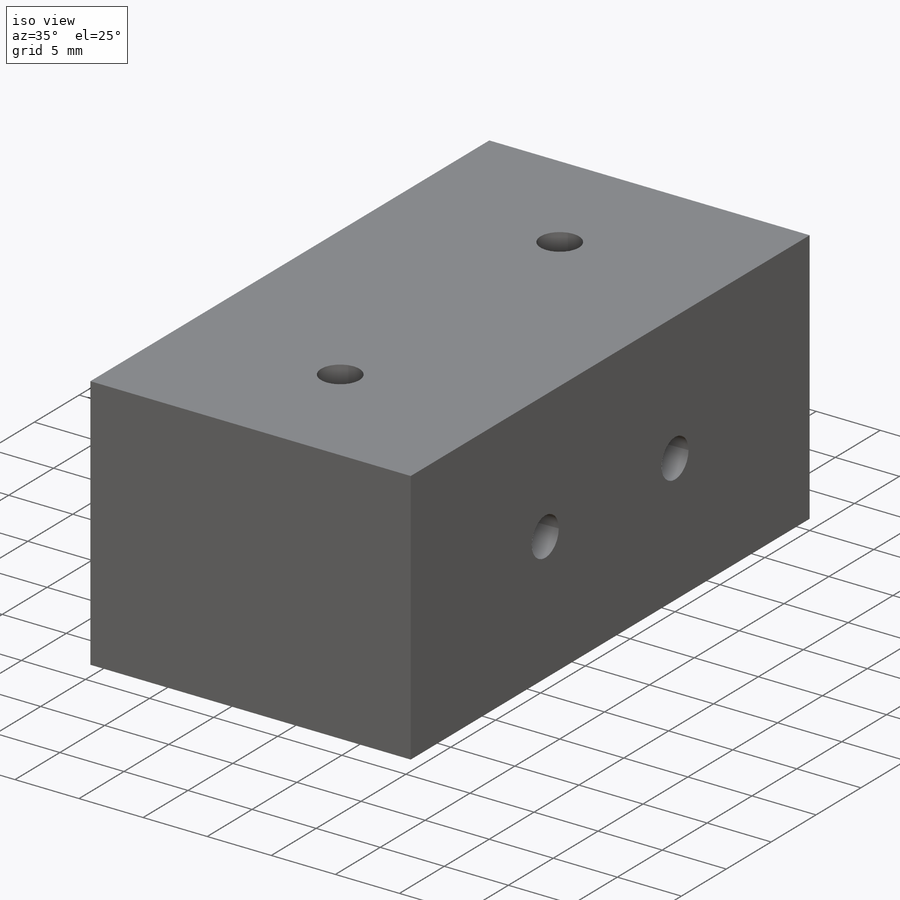
[diagram: iso view]
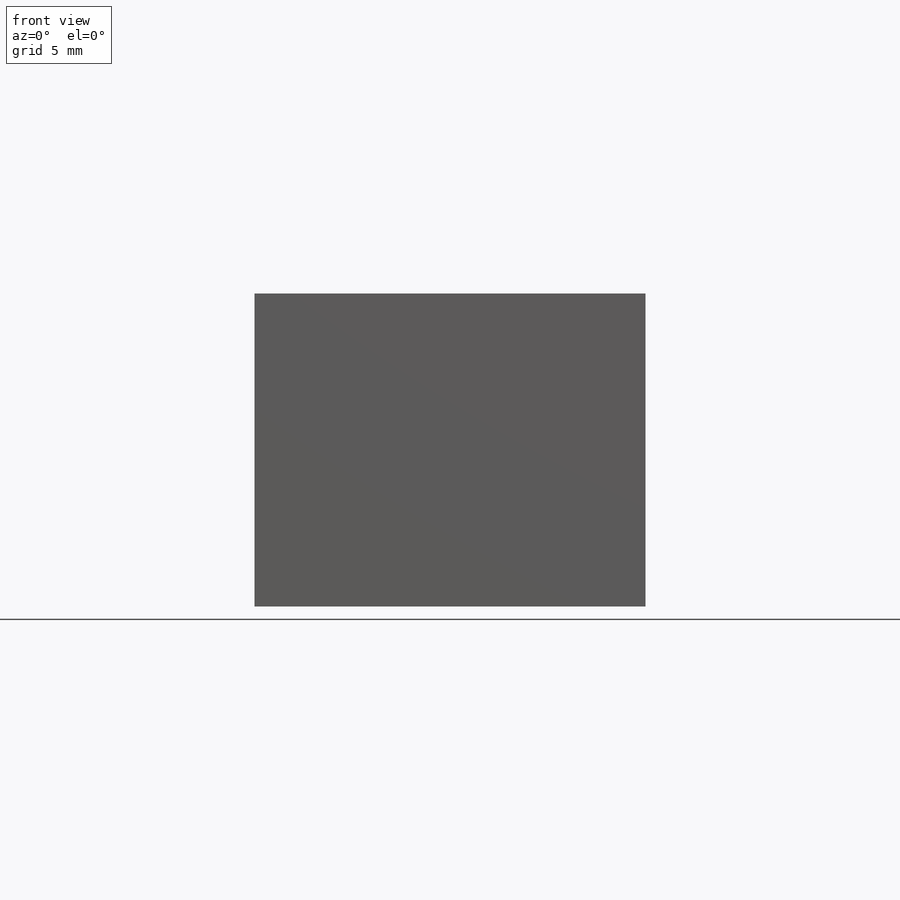
[diagram: front view]
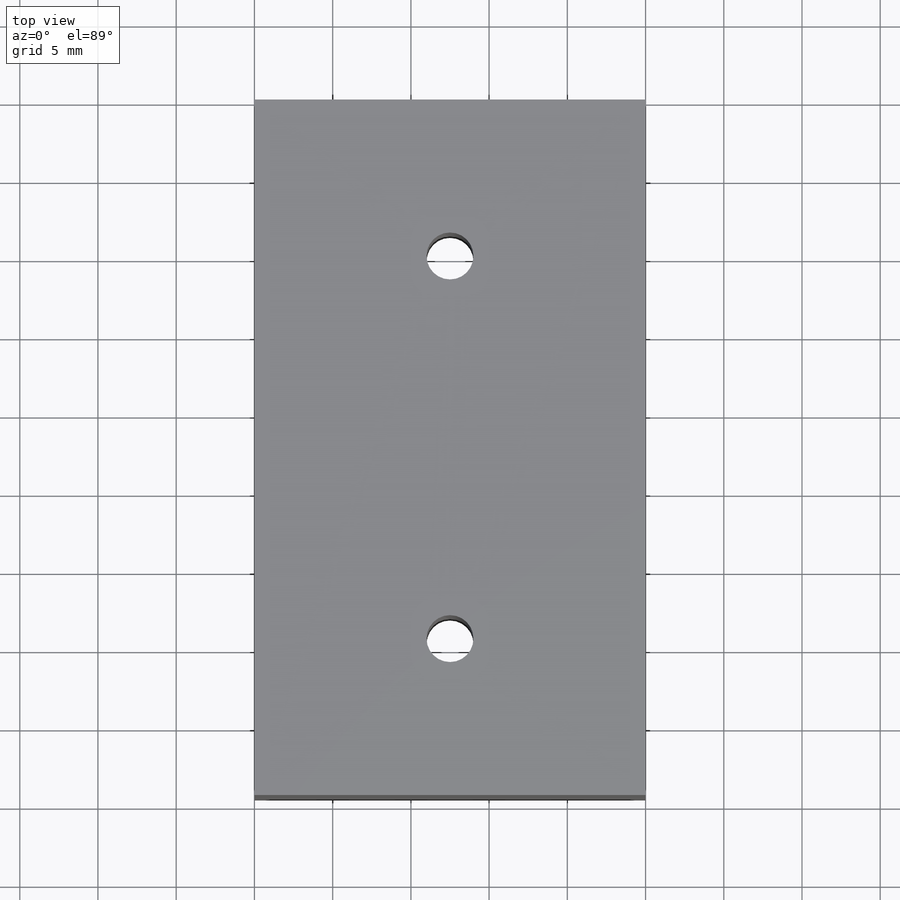
[diagram: top view]
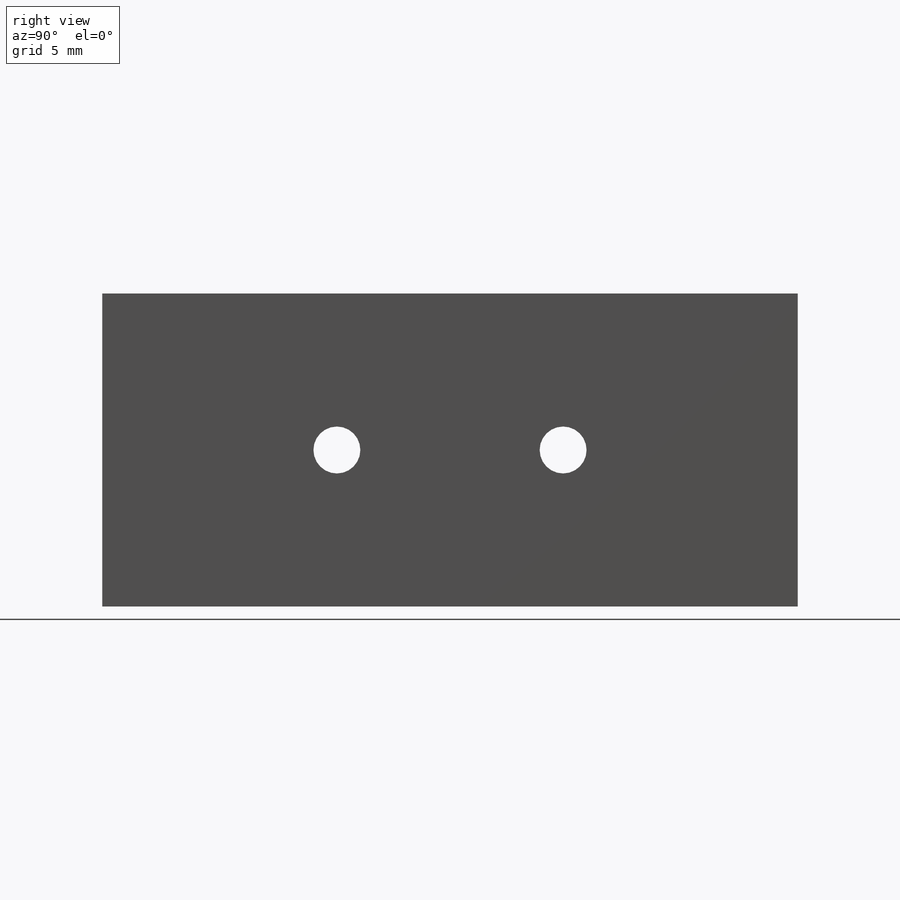
[diagram: right view]
SOLIDWORKS PART (.sldprt)
format: sldprt  version: not decoded by parser v0  size: 155,648 bytes
history: native  units: mm
features: plane x3, sketch x3, cut_extrude x2, material x1, extrude x1 (+10 scaffold rows collapsed)
feature tree (20):
  scaffold x10  (default folders/planes/origin — collapsed)
  material  "Material <sin especificar>"
  plane  "Alzado"
  plane  "Planta"
  plane  "Vista lateral"
  sketch  "Croquis2"  dims[D1=50.0mm D2=30.0mm D3=30.0mm D5=~16.743657mm D4=20.0mm]
  extrude  "Saliente-Extruir2"  Depth=25mm
  sketch  "Croquis3"  dims[c1.D1=~11.868341mm c1.D3=3.0mm c1.D4=3.0mm c2.D1=10.0mm c2.D2=10.0mm]
  cut_extrude  "Cortar-Extruir1"  [1 undecoded]
  sketch  "Croquis4"  dims[c1.D1=~3.520703mm c1.D3=3.0mm c1.D4=3.0mm c2.D1=10.0mm c2.D2=~11.033644mm c3.D1=15.0mm c3.D2=15.0mm]
  cut_extrude  "Cortar-Extruir2"  Depth=50mm
decode coverage: 5 of 6 modeling features carry decoded parameters
note: ~ marks probable driven/reference dimensions
note: 1 parameter value undecoded
note: suppression state not decoded; provenance and decode notes live in map.json
